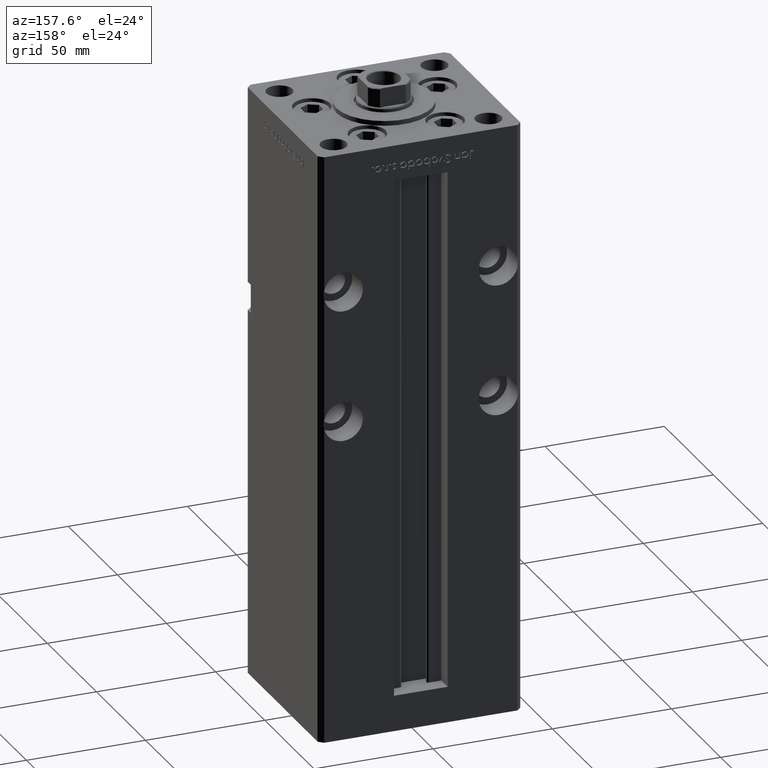
[diagram: clean part render]
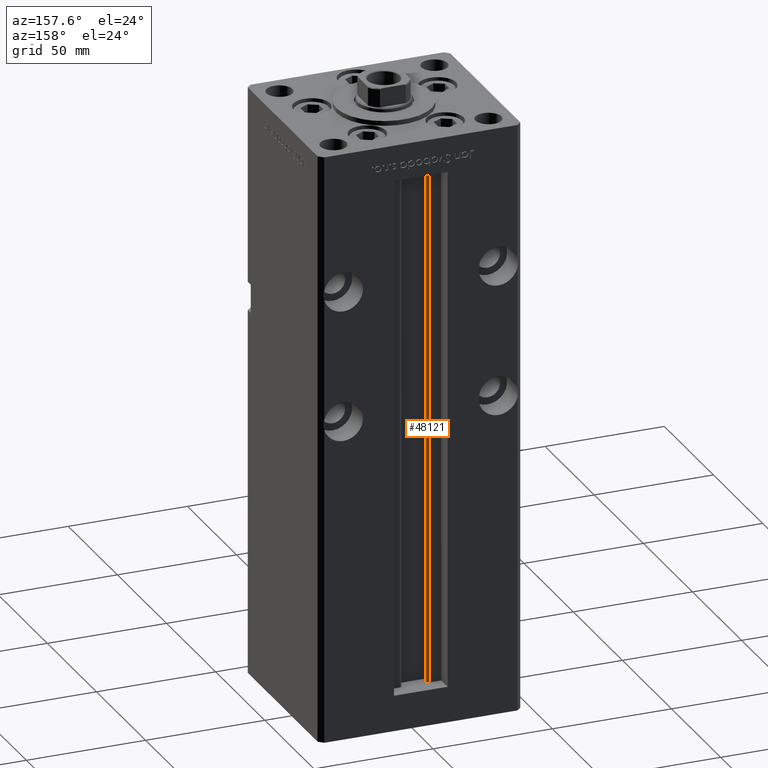
[diagram: same view with one face highlighted and labeled with its STEP entity id]
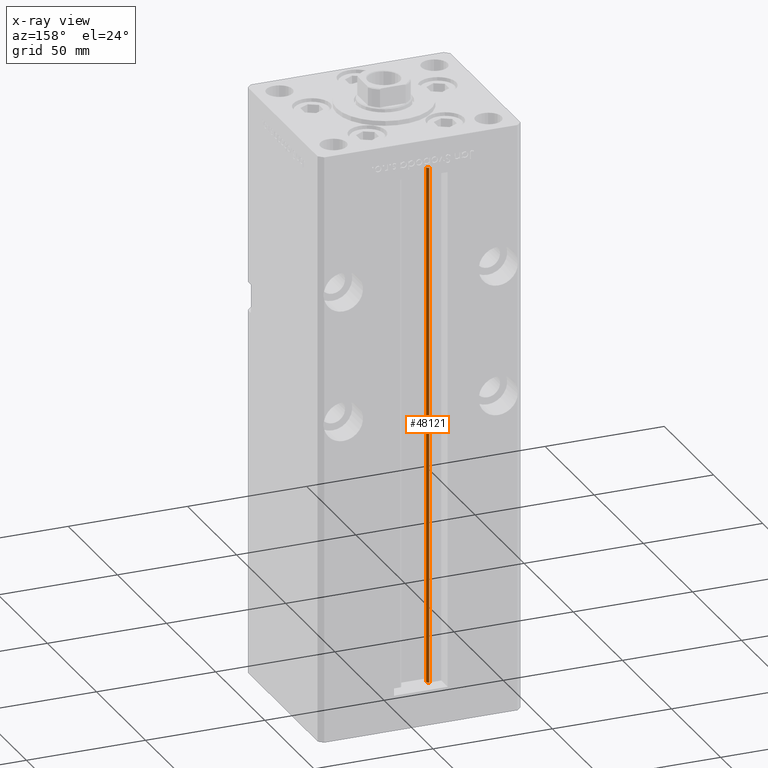
[diagram: x-ray of the same camera — body ghosted, the highlighted face saturated]
A machine part, auxiliary view. The second image highlights one B-rep face of the part: STEP entity #48121.
The next image is the same camera in x-ray: the body ghosted, the highlighted face saturated — about 0% of this face is hidden behind the body in this view.
In plain terms, the highlighted cylindrical surface (edge-blend (fillet) strip) has radius 0.9333 mm, axis along (0, 0, 1).
Its self-contained STEP definition (entity closure, byte-faithful):
#887 = VERTEX_POINT ( 'NONE', #43307 ) ;
#1071 = DIRECTION ( 'NONE',  ( 1.000000000000000000, 0.000000000000000000, 0.000000000000000000 ) ) ;
#3092 = VERTEX_POINT ( 'NONE', #22342 ) ;
#4081 = CIRCLE ( 'NONE', #28955, 0.9333333333340008142 ) ;
#5896 = EDGE_CURVE ( 'NONE', #887, #32512, #10817, .T. ) ;
#9402 = CARTESIAN_POINT ( 'NONE',  ( -5.249999999999996447, 30.06666666666599852, 218.5000000000000000 ) ) ;
#9884 = AXIS2_PLACEMENT_3D ( 'NONE', #37657, #25254, #1071 ) ;
#10817 = CIRCLE ( 'NONE', #26257, 0.9333333333340008142 ) ;
#11564 = LINE ( 'NONE', #52467, #40433 ) ;
#15076 = DIRECTION ( 'NONE',  ( -0.000000000000000000, -0.000000000000000000, 1.000000000000000000 ) ) ;
#15417 = EDGE_CURVE ( 'NONE', #3092, #43758, #4081, .T. ) ;
#15543 = VECTOR ( 'NONE', #15076, 1000.000000000000000 ) ;
#19277 = ORIENTED_EDGE ( 'NONE', *, *, #27057, .T. ) ;
#21998 = DIRECTION ( 'NONE',  ( 1.000000000000000000, 0.000000000000000000, 0.000000000000000000 ) ) ;
#22342 = CARTESIAN_POINT ( 'NONE',  ( -6.183333333333997928, 31.00000000000000000, 218.5000000000000000 ) ) ;
#25217 = EDGE_CURVE ( 'NONE', #32512, #43758, #11564, .T. ) ;
#25254 = DIRECTION ( 'NONE',  ( -0.000000000000000000, -0.000000000000000000, 1.000000000000000000 ) ) ;
#25786 = CYLINDRICAL_SURFACE ( 'NONE', #9884, 0.9333333333340008142 ) ;
#26257 = AXIS2_PLACEMENT_3D ( 'NONE', #28130, #53147, #49101 ) ;
#27057 = EDGE_CURVE ( 'NONE', #887, #3092, #31770, .T. ) ;
#28130 = CARTESIAN_POINT ( 'NONE',  ( -6.183333333333997928, 30.06666666666599852, 0.000000000000000000 ) ) ;
#28955 = AXIS2_PLACEMENT_3D ( 'NONE', #34125, #49728, #21998 ) ;
#31770 = LINE ( 'NONE', #47904, #15543 ) ;
#32512 = VERTEX_POINT ( 'NONE', #45069 ) ;
#34125 = CARTESIAN_POINT ( 'NONE',  ( -6.183333333333997928, 30.06666666666599852, 218.5000000000000000 ) ) ;
#34405 = FACE_OUTER_BOUND ( 'NONE', #40905, .T. ) ;
#37657 = CARTESIAN_POINT ( 'NONE',  ( -6.183333333333997928, 30.06666666666599852, 0.000000000000000000 ) ) ;
#39797 = ORIENTED_EDGE ( 'NONE', *, *, #15417, .T. ) ;
#40433 = VECTOR ( 'NONE', #44102, 1000.000000000000000 ) ;
#40506 = ORIENTED_EDGE ( 'NONE', *, *, #25217, .F. ) ;
#40905 = EDGE_LOOP ( 'NONE', ( #40506, #47317, #19277, #39797 ) ) ;
#43307 = CARTESIAN_POINT ( 'NONE',  ( -6.183333333333997928, 31.00000000000000000, 0.000000000000000000 ) ) ;
#43758 = VERTEX_POINT ( 'NONE', #9402 ) ;
#44102 = DIRECTION ( 'NONE',  ( -0.000000000000000000, -0.000000000000000000, 1.000000000000000000 ) ) ;
#45069 = CARTESIAN_POINT ( 'NONE',  ( -5.249999999999996447, 30.06666666666599852, 0.000000000000000000 ) ) ;
#47317 = ORIENTED_EDGE ( 'NONE', *, *, #5896, .F. ) ;
#47904 = CARTESIAN_POINT ( 'NONE',  ( -6.183333333333997928, 31.00000000000000000, 0.000000000000000000 ) ) ;
#48121 = ADVANCED_FACE ( 'NONE', ( #34405 ), #25786, .T. ) ;
#49101 = DIRECTION ( 'NONE',  ( 1.000000000000000000, 0.000000000000000000, 0.000000000000000000 ) ) ;
#49728 = DIRECTION ( 'NONE',  ( 0.000000000000000000, 0.000000000000000000, -1.000000000000000000 ) ) ;
#52467 = CARTESIAN_POINT ( 'NONE',  ( -5.249999999999996447, 30.06666666666599852, 0.000000000000000000 ) ) ;
#53147 = DIRECTION ( 'NONE',  ( -0.000000000000000000, -0.000000000000000000, -1.000000000000000000 ) ) ;